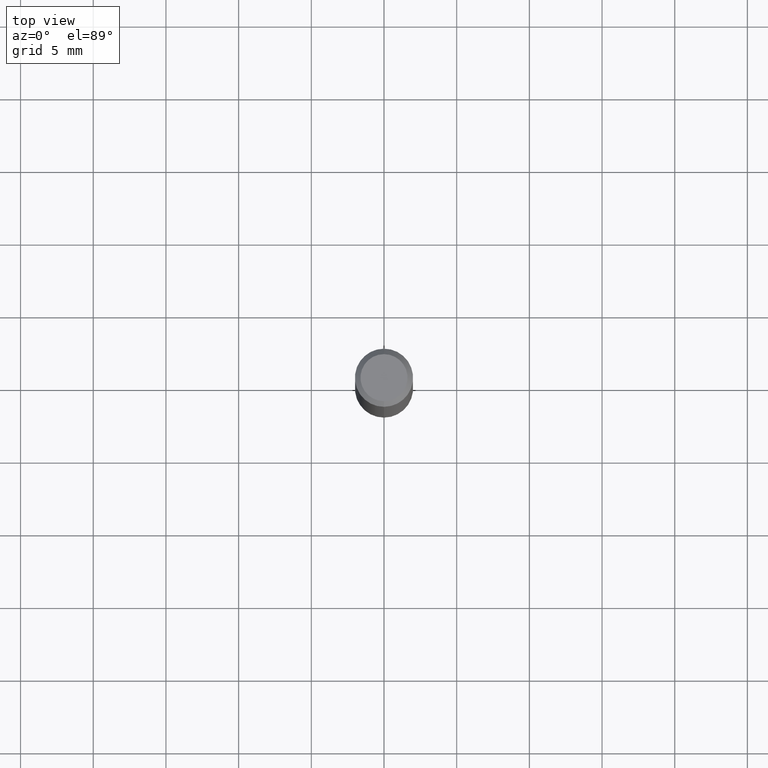
[diagram: clean part render]
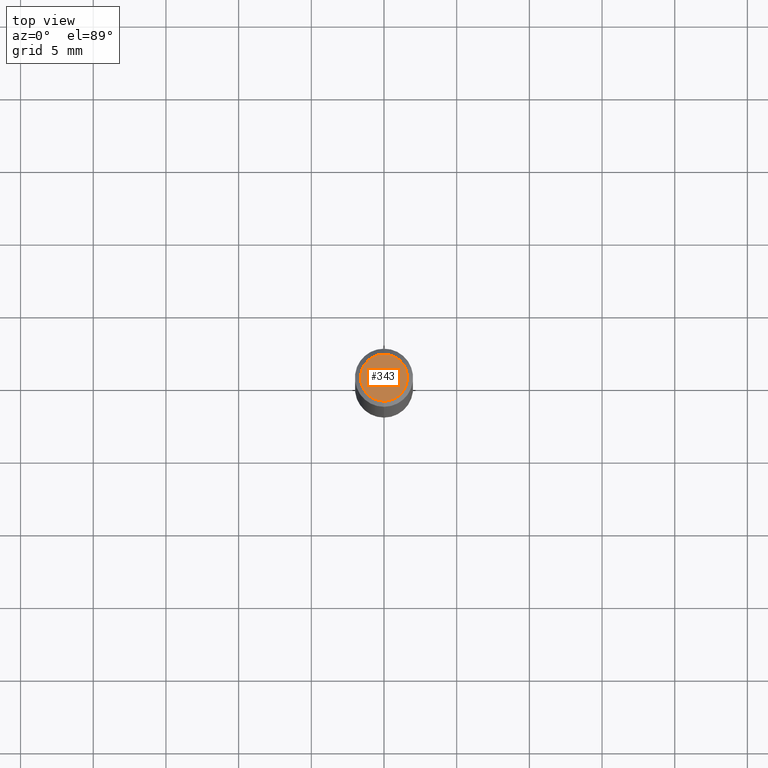
[diagram: same view with one face highlighted and labeled with its STEP entity id]
A machine part, top view. The second image highlights one B-rep face of the part: STEP entity #343.
In plain terms, the highlighted planar face has unit normal (0, -0, -1).
Its self-contained STEP definition (entity closure, byte-faithful):
#1 = CIRCLE ( 'NONE', #275, 0.06375000000000000111 ) ;
#61 = DIRECTION ( 'NONE',  ( 6.982962677686265922E-15, 1.000000000000000000, -3.491546733694993225E-15 ) ) ;
#141 = EDGE_CURVE ( 'NONE', #447, #178, #379, .T. ) ;
#143 = FACE_OUTER_BOUND ( 'NONE', #437, .T. ) ;
#150 = CARTESIAN_POINT ( 'NONE',  ( -4.888104823412213911E-16, -0.06375000000000000111, 4.576885571078046976E-16 ) ) ;
#152 = DIRECTION ( 'NONE',  ( -2.445423141204159656E-29, 3.491546733694993619E-15, 1.000000000000000000 ) ) ;
#158 = CARTESIAN_POINT ( 'NONE',  ( 4.975360907851465623E-16, 0.06375000000000000111, 1.251634856169309859E-17 ) ) ;
#178 = VERTEX_POINT ( 'NONE', #150 ) ;
#200 = AXIS2_PLACEMENT_3D ( 'NONE', #450, #254, #61 ) ;
#239 = ORIENTED_EDGE ( 'NONE', *, *, #374, .T. ) ;
#254 = DIRECTION ( 'NONE',  ( 2.445423141204159656E-29, -3.491546733694993225E-15, -1.000000000000000000 ) ) ;
#257 = CARTESIAN_POINT ( 'NONE',  ( -5.749249787159544163E-45, 8.208712012788487763E-31, 2.351024528347489012E-16 ) ) ;
#275 = AXIS2_PLACEMENT_3D ( 'NONE', #340, #152, #297 ) ;
#291 = PLANE ( 'NONE',  #200 ) ;
#297 = DIRECTION ( 'NONE',  ( -6.982962677686264344E-15, -1.000000000000000000, 3.491546733694992831E-15 ) ) ;
#336 = ORIENTED_EDGE ( 'NONE', *, *, #141, .T. ) ;
#340 = CARTESIAN_POINT ( 'NONE',  ( -5.749249787159544163E-45, 8.208712012788487763E-31, 2.351024528347489012E-16 ) ) ;
#343 = ADVANCED_FACE ( 'NONE', ( #143 ), #291, .F. ) ;
#374 = EDGE_CURVE ( 'NONE', #178, #447, #1, .T. ) ;
#379 = CIRCLE ( 'NONE', #506, 0.06375000000000000111 ) ;
#426 = DIRECTION ( 'NONE',  ( -2.445423141204159656E-29, 3.491546733694993619E-15, 1.000000000000000000 ) ) ;
#437 = EDGE_LOOP ( 'NONE', ( #336, #239 ) ) ;
#447 = VERTEX_POINT ( 'NONE', #158 ) ;
#450 = CARTESIAN_POINT ( 'NONE',  ( 4.451638707024993845E-16, 0.06375000000000000111, -1.050348778556813828E-16 ) ) ;
#497 = DIRECTION ( 'NONE',  ( -6.982962677686264344E-15, -1.000000000000000000, 3.491546733694992831E-15 ) ) ;
#506 = AXIS2_PLACEMENT_3D ( 'NONE', #257, #426, #497 ) ;